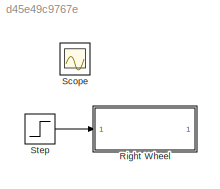
MODEL slx_d45e49c9767e
KIND model
CONFIG AbsTol = auto
CONFIG EnableMultiTasking = off
CONFIG FixedStep = auto
CONFIG MaxStep = auto
CONFIG MinStep = auto
CONFIG RelTol = 1e-3
CONFIG SampleTimeConstraint = Unconstrained
CONFIG SolverName = VariableStepAuto
CONFIG StartTime = 0.0
CONFIG StopTime = 10.0
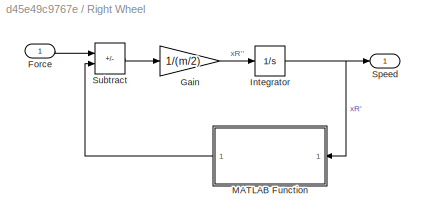
BLOCK [SubSystem] Right Wheel
BLOCK [Inport] Right Wheel/Force
BLOCK [Gain] Right Wheel/Gain
  Gain = 1/(m/2)
BLOCK [Integrator] Right Wheel/Integrator
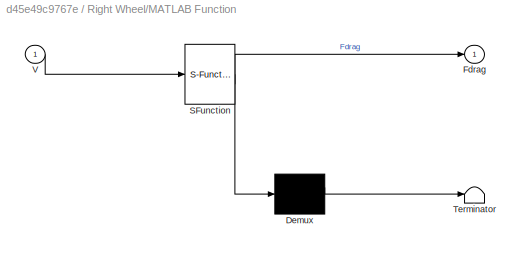
BLOCK [SubSystem] Right Wheel/MATLAB Function
  ErrorFcn = Stateflow.Translate.translate
  PermitHierarchicalResolution = ExplicitOnly
  SFBlockType = MATLAB Function
  TreatAsAtomicUnit = on
BLOCK [Demux] Right Wheel/MATLAB Function/ Demux 
  Outputs = 1
BLOCK [S-Function] Right Wheel/MATLAB Function/ SFunction 
  EnableBusSupport = on
  FunctionName = sf_sfun
  Parameters = k_drag
  PortCounts = [1 2]
  SFcnIsStateOwnerBlock = off
  SFunctionDeploymentMode = off
  Tag = Stateflow S-Function 2
BLOCK [Terminator] Right Wheel/MATLAB Function/ Terminator 
BLOCK [Outport] Right Wheel/MATLAB Function/Fdrag
BLOCK [Inport] Right Wheel/MATLAB Function/V
BLOCK [Outport] Right Wheel/Speed
BLOCK [Sum] Right Wheel/Subtract
  IconShape = rectangular
  Inputs = +-
BLOCK [Scope] Scope
  Floating = off
  IOType = viewer
  NumInputPorts = 1
  ScopeSpecificationString = Simulink.scopes.TimeScopeBlockCfg('CurrentConfiguration', extmgr.ConfigurationSet(extmgr.Configuration('Core','General UI',true),extmgr.Configuration('Core','Source UI',true),extmgr.Configuration('Sources','WiredSimulink',true),extmgr.Configuration('Visuals','Time Domain',true,'SerializedDisplays',{struct('MinYLimReal','0.182574161','MaxYLimReal','0.182574196','YLabelReal','','MinYLimMag','0.18257...<+1405ch>
BLOCK [Step] Step
  SampleTime = 0
LINE Right Wheel/Force:1 -> Right Wheel/Subtract:1
LINE Right Wheel/Gain:1 -> Right Wheel/Integrator:1
NET Right Wheel/Integrator:1 -> Right Wheel/MATLAB Function:1, Right Wheel/Speed:1
LINE Right Wheel/MATLAB Function:1 -> Right Wheel/Subtract:2
LINE Right Wheel/Subtract:1 -> Right Wheel/Gain:1
LINE Step:1 -> Right Wheel:1
note: NET lines group one-source signal fan-out (src -> all destinations, sorted); 1:1 wires keep LINE
CHART Right Wheel/MATLAB Function states=1 transitions=1
  STATE_LABEL 'eML_blk_kernel()'
  STATE_LABEL 'SCRIPT:\nfunction Fdrag=get_fdrag(V, k_drag)\n\nFdrag=k_drag*V*abs(V);'
CHART  states=0 transitions=0
